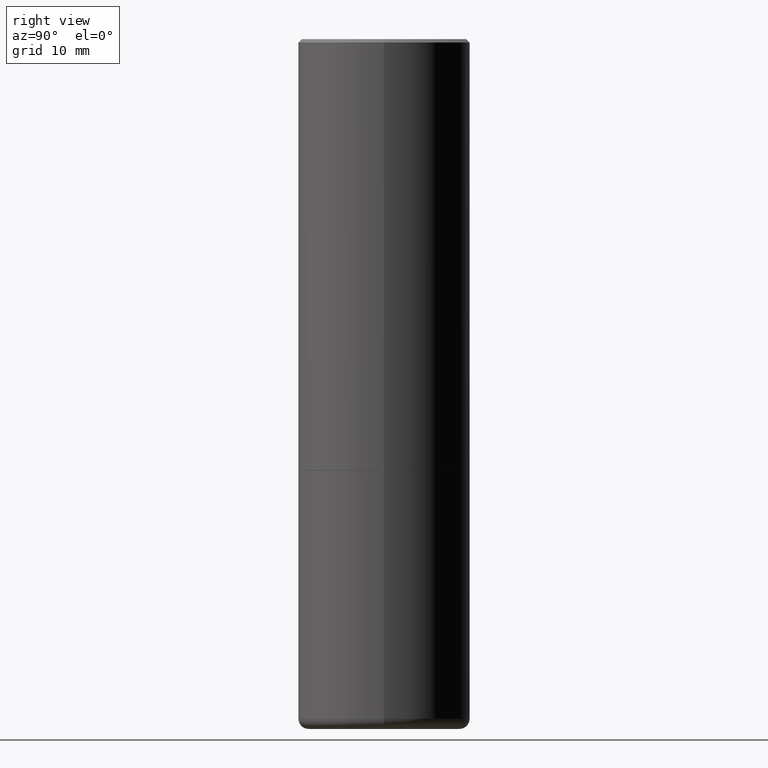
[diagram: clean part render]
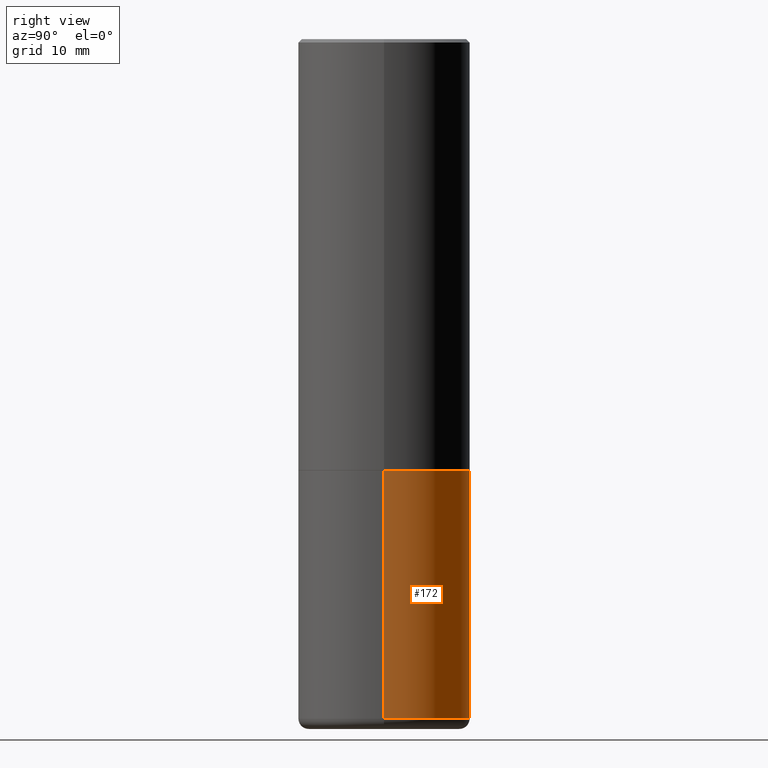
[diagram: same view with one face highlighted and labeled with its STEP entity id]
A machine part, right view. The second image highlights one B-rep face of the part: STEP entity #172.
In plain terms, the highlighted cylindrical surface (partial cylindrical patch) has radius 12.7 mm, axis along (-0, 0, 1).
Its self-contained STEP definition (entity closure, byte-faithful):
#9 = CARTESIAN_POINT ( 'NONE',  ( 6.113672015462842613E-29, -8.728703347107864943E-15, -2.500000000000000000 ) ) ;
#14 = ORIENTED_EDGE ( 'NONE', *, *, #235, .T. ) ;
#15 = CYLINDRICAL_SURFACE ( 'NONE', #298, 0.4999999999999998335 ) ;
#18 = VECTOR ( 'NONE', #23, 39.37007874015748143 ) ;
#23 = DIRECTION ( 'NONE',  ( -2.445468806185136877E-29, 3.491481338843145188E-15, 1.000000000000000000 ) ) ;
#61 = CARTESIAN_POINT ( 'NONE',  ( 0.5000000000000000000, -1.222018468595099830E-14, -2.500000000000000000 ) ) ;
#76 = EDGE_LOOP ( 'NONE', ( #287, #14, #413, #408 ) ) ;
#77 = CARTESIAN_POINT ( 'NONE',  ( -0.4999999999999998335, 3.552713678800499746E-15, -2.459467545127452330E-29 ) ) ;
#78 = DIRECTION ( 'NONE',  ( 1.000000000000000000, -6.982962677686267499E-15, 4.876176775795936353E-29 ) ) ;
#101 = EDGE_CURVE ( 'NONE', #280, #315, #353, .T. ) ;
#112 = CARTESIAN_POINT ( 'NONE',  ( -0.5000000000000000000, -7.689856232274430126E-15, -2.500000000000000000 ) ) ;
#119 = VERTEX_POINT ( 'NONE', #425 ) ;
#120 = CARTESIAN_POINT ( 'NONE',  ( 9.635147096369438236E-29, -1.375643647504199401E-14, -3.939999999999999947 ) ) ;
#124 = CARTESIAN_POINT ( 'NONE',  ( 0.4999999999999998335, -3.491481338843132566E-15, 2.438088387897967336E-29 ) ) ;
#133 = AXIS2_PLACEMENT_3D ( 'NONE', #120, #218, #391 ) ;
#143 = DIRECTION ( 'NONE',  ( -2.445468806185136877E-29, 3.491481338843145188E-15, 1.000000000000000000 ) ) ;
#153 = CIRCLE ( 'NONE', #284, 0.5000000000000000000 ) ;
#172 = ADVANCED_FACE ( 'NONE', ( #185 ), #15, .T. ) ;
#177 = DIRECTION ( 'NONE',  ( 1.000000000000000000, -6.982962677686269077E-15, 0.000000000000000000 ) ) ;
#185 = FACE_OUTER_BOUND ( 'NONE', #76, .T. ) ;
#187 = VERTEX_POINT ( 'NONE', #112 ) ;
#215 = EDGE_CURVE ( 'NONE', #280, #119, #338, .T. ) ;
#218 = DIRECTION ( 'NONE',  ( -2.445468806185136597E-29, 3.491481338843145583E-15, 1.000000000000000000 ) ) ;
#225 = EDGE_CURVE ( 'NONE', #315, #187, #153, .T. ) ;
#235 = EDGE_CURVE ( 'NONE', #119, #187, #381, .T. ) ;
#239 = VECTOR ( 'NONE', #143, 39.37007874015748143 ) ;
#265 = CARTESIAN_POINT ( 'NONE',  ( 0.4999999999999997780, -1.724791781388512421E-14, -3.939999999999999947 ) ) ;
#280 = VERTEX_POINT ( 'NONE', #265 ) ;
#284 = AXIS2_PLACEMENT_3D ( 'NONE', #9, #345, #177 ) ;
#287 = ORIENTED_EDGE ( 'NONE', *, *, #215, .T. ) ;
#298 = AXIS2_PLACEMENT_3D ( 'NONE', #318, #382, #78 ) ;
#315 = VERTEX_POINT ( 'NONE', #61 ) ;
#318 = CARTESIAN_POINT ( 'NONE',  ( 0.000000000000000000, 0.000000000000000000, 0.000000000000000000 ) ) ;
#338 = CIRCLE ( 'NONE', #133, 0.4999999999999997780 ) ;
#345 = DIRECTION ( 'NONE',  ( -2.445468806185136597E-29, 3.491481338843145583E-15, 1.000000000000000000 ) ) ;
#353 = LINE ( 'NONE', #124, #18 ) ;
#381 = LINE ( 'NONE', #77, #239 ) ;
#382 = DIRECTION ( 'NONE',  ( -2.445468806185136597E-29, 3.491481338843145583E-15, 1.000000000000000000 ) ) ;
#391 = DIRECTION ( 'NONE',  ( 1.000000000000000000, -6.982962677686265922E-15, 0.000000000000000000 ) ) ;
#408 = ORIENTED_EDGE ( 'NONE', *, *, #101, .F. ) ;
#413 = ORIENTED_EDGE ( 'NONE', *, *, #225, .F. ) ;
#425 = CARTESIAN_POINT ( 'NONE',  ( -0.4999999999999997780, -1.020372279624149466E-14, -3.939999999999999947 ) ) ;